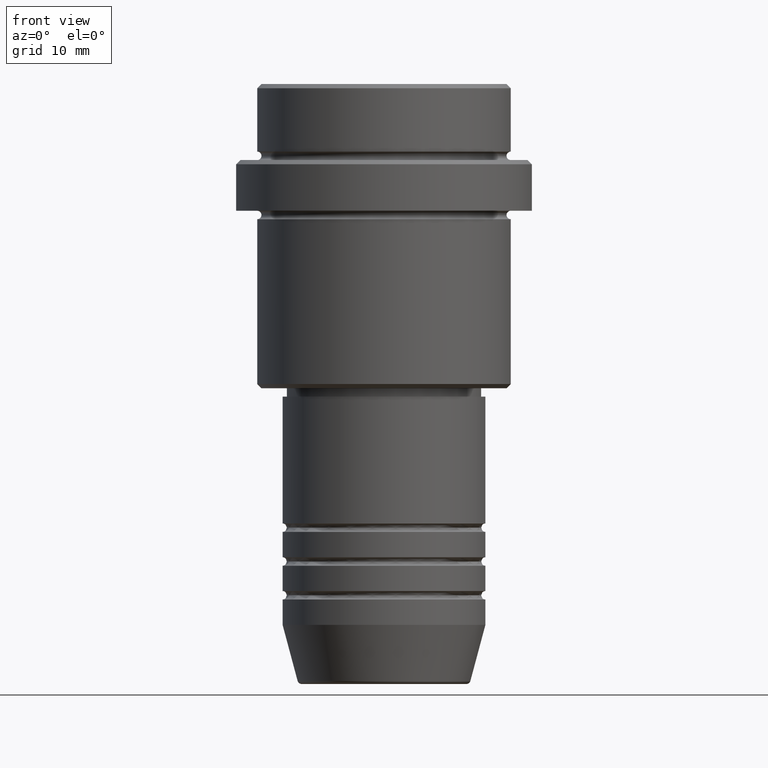
[diagram: clean part render]
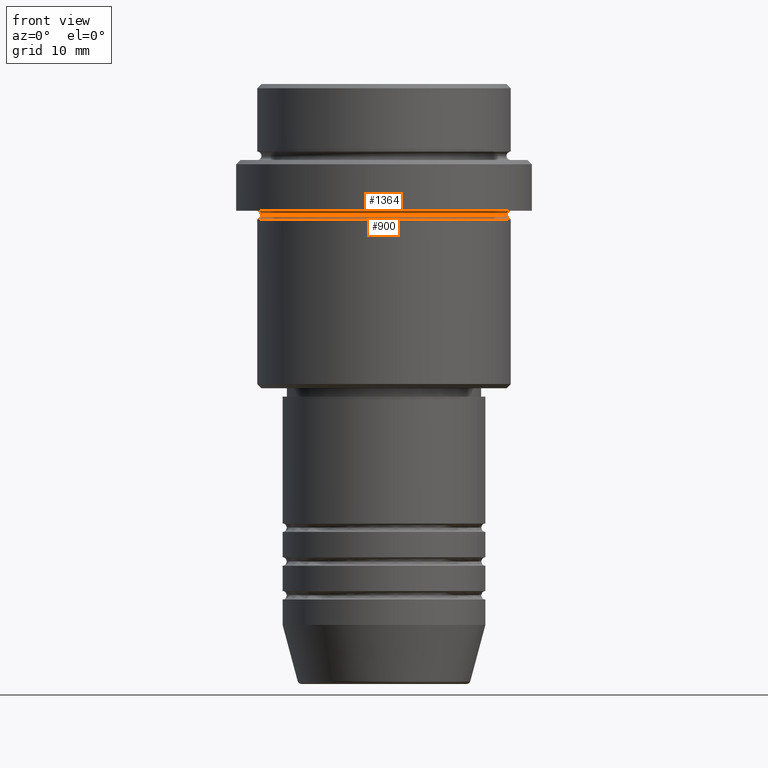
[diagram: same view with one multi-face feature highlighted, each face labeled with its STEP entity id]
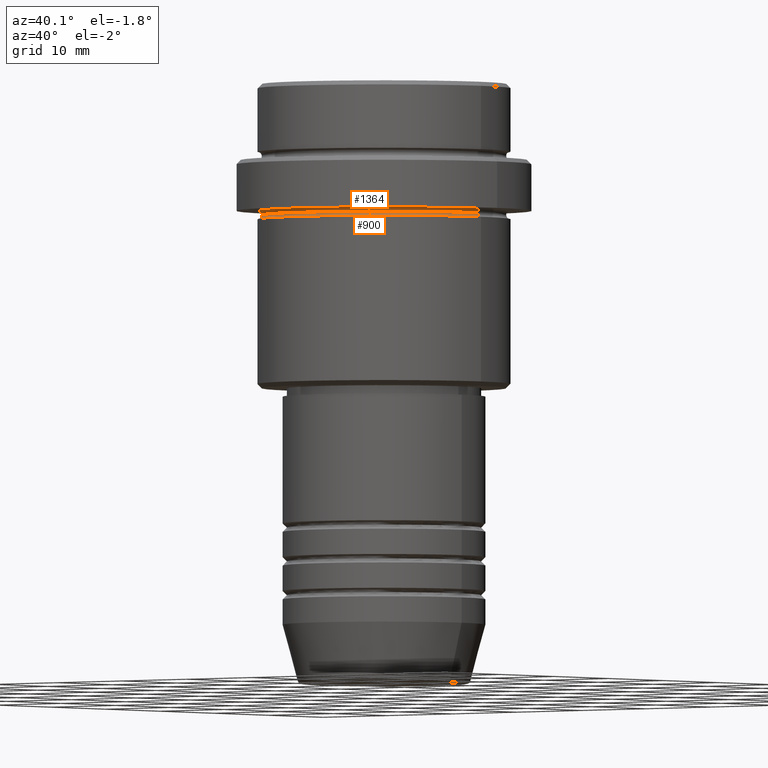
[diagram: same view with one multi-face feature highlighted, each face labeled with its STEP entity id]
A machine part, front view. The highlighted faces form ONE feature: a constant-radius fillet chain: 2 tangent blend faces with common blend radius 0.5 mm. The faces share edges in the B-rep.
A second angle (auxiliary view) of the same feature is appended — it is thin or edge-on in the first view.
Their STEP definitions:
[1] entity #900 (Torus):
#47 = CARTESIAN_POINT ( 'NONE',  ( 15.00000000000000178, 0.000000000000000000, -16.00000000000000000 ) ) ;
#158 = CARTESIAN_POINT ( 'NONE',  ( 0.000000000000000000, 0.000000000000000000, -15.50000000000000000 ) ) ;
#195 = ORIENTED_EDGE ( 'NONE', *, *, #915, .T. ) ;
#234 = AXIS2_PLACEMENT_3D ( 'NONE', #397, #531, #1253 ) ;
#242 = DIRECTION ( 'NONE',  ( -1.000000000000000000, 0.000000000000000000, 0.000000000000000000 ) ) ;
#280 = CIRCLE ( 'NONE', #793, 15.00000000000000178 ) ;
#293 = CARTESIAN_POINT ( 'NONE',  ( -15.00000000000000355, 1.836970198721029983E-15, -16.00000000000000000 ) ) ;
#330 = VERTEX_POINT ( 'NONE', #911 ) ;
#344 = EDGE_CURVE ( 'NONE', #869, #330, #1302, .T. ) ;
#384 = CARTESIAN_POINT ( 'NONE',  ( 14.49999999999999467, 1.806354028742345013E-15, -15.50000000000000000 ) ) ;
#397 = CARTESIAN_POINT ( 'NONE',  ( 14.99999999999999467, 1.836970198721029194E-15, -15.50000000000000000 ) ) ;
#427 = AXIS2_PLACEMENT_3D ( 'NONE', #1212, #781, #242 ) ;
#442 = CARTESIAN_POINT ( 'NONE',  ( -14.99999999999999467, 0.000000000000000000, -15.50000000000000000 ) ) ;
#508 = FACE_OUTER_BOUND ( 'NONE', #1297, .T. ) ;
#531 = DIRECTION ( 'NONE',  ( -1.224646799147353207E-16, 1.000000000000000000, 0.000000000000000000 ) ) ;
#638 = AXIS2_PLACEMENT_3D ( 'NONE', #442, #1201, #882 ) ;
#781 = DIRECTION ( 'NONE',  ( 0.000000000000000000, 0.000000000000000000, -1.000000000000000000 ) ) ;
#793 = AXIS2_PLACEMENT_3D ( 'NONE', #928, #1142, #1361 ) ;
#826 = DIRECTION ( 'NONE',  ( -1.000000000000000000, 0.000000000000000000, 0.000000000000000000 ) ) ;
#869 = VERTEX_POINT ( 'NONE', #384 ) ;
#882 = DIRECTION ( 'NONE',  ( 0.000000000000000000, 0.000000000000000000, -1.000000000000000000 ) ) ;
#899 = TOROIDAL_SURFACE ( 'NONE', #1005, 14.99999999999999467, 0.5000000000000000000 ) ;
#900 = ADVANCED_FACE ( 'NONE', ( #508 ), #899, .F. ) ;
#903 = VERTEX_POINT ( 'NONE', #293 ) ;
#911 = CARTESIAN_POINT ( 'NONE',  ( -14.49999999999999467, 0.000000000000000000, -15.50000000000000000 ) ) ;
#915 = EDGE_CURVE ( 'NONE', #903, #1294, #280, .T. ) ;
#928 = CARTESIAN_POINT ( 'NONE',  ( 0.000000000000000000, 0.000000000000000000, -16.00000000000000000 ) ) ;
#1005 = AXIS2_PLACEMENT_3D ( 'NONE', #158, #1272, #826 ) ;
#1063 = EDGE_CURVE ( 'NONE', #903, #330, #1092, .T. ) ;
#1092 = CIRCLE ( 'NONE', #638, 0.5000000000000004441 ) ;
#1142 = DIRECTION ( 'NONE',  ( -0.000000000000000000, -0.000000000000000000, 1.000000000000000000 ) ) ;
#1154 = ORIENTED_EDGE ( 'NONE', *, *, #344, .T. ) ;
#1194 = CIRCLE ( 'NONE', #234, 0.5000000000000004441 ) ;
#1201 = DIRECTION ( 'NONE',  ( -0.000000000000000000, -1.000000000000000000, -0.000000000000000000 ) ) ;
#1212 = CARTESIAN_POINT ( 'NONE',  ( 0.000000000000000000, 0.000000000000000000, -15.50000000000000000 ) ) ;
#1252 = ORIENTED_EDGE ( 'NONE', *, *, #1063, .F. ) ;
#1253 = DIRECTION ( 'NONE',  ( -1.000000000000000000, -1.224646799147349509E-16, 0.000000000000000000 ) ) ;
#1272 = DIRECTION ( 'NONE',  ( 0.000000000000000000, 0.000000000000000000, -1.000000000000000000 ) ) ;
#1294 = VERTEX_POINT ( 'NONE', #47 ) ;
#1297 = EDGE_LOOP ( 'NONE', ( #195, #1402, #1154, #1252 ) ) ;
#1302 = CIRCLE ( 'NONE', #427, 14.49999999999999467 ) ;
#1361 = DIRECTION ( 'NONE',  ( 1.000000000000000000, 0.000000000000000000, 0.000000000000000000 ) ) ;
#1378 = EDGE_CURVE ( 'NONE', #1294, #869, #1194, .T. ) ;
#1402 = ORIENTED_EDGE ( 'NONE', *, *, #1378, .T. ) ;
[2] entity #1364 (Torus):
#96 = AXIS2_PLACEMENT_3D ( 'NONE', #927, #382, #1359 ) ;
#117 = CIRCLE ( 'NONE', #252, 0.5000000000000004441 ) ;
#160 = CIRCLE ( 'NONE', #373, 0.5000000000000004441 ) ;
#161 = DIRECTION ( 'NONE',  ( -1.224646799147353207E-16, 1.000000000000000000, 0.000000000000000000 ) ) ;
#168 = DIRECTION ( 'NONE',  ( 0.000000000000000000, 0.000000000000000000, -1.000000000000000000 ) ) ;
#209 = ORIENTED_EDGE ( 'NONE', *, *, #481, .F. ) ;
#223 = CARTESIAN_POINT ( 'NONE',  ( 14.99999999999999467, 1.836970198721029194E-15, -15.50000000000000000 ) ) ;
#242 = DIRECTION ( 'NONE',  ( -1.000000000000000000, 0.000000000000000000, 0.000000000000000000 ) ) ;
#252 = AXIS2_PLACEMENT_3D ( 'NONE', #722, #1246, #168 ) ;
#330 = VERTEX_POINT ( 'NONE', #911 ) ;
#344 = EDGE_CURVE ( 'NONE', #869, #330, #1302, .T. ) ;
#373 = AXIS2_PLACEMENT_3D ( 'NONE', #223, #161, #734 ) ;
#382 = DIRECTION ( 'NONE',  ( 0.000000000000000000, 0.000000000000000000, -1.000000000000000000 ) ) ;
#384 = CARTESIAN_POINT ( 'NONE',  ( 14.49999999999999467, 1.806354028742345013E-15, -15.50000000000000000 ) ) ;
#427 = AXIS2_PLACEMENT_3D ( 'NONE', #1212, #781, #242 ) ;
#430 = VERTEX_POINT ( 'NONE', #636 ) ;
#481 = EDGE_CURVE ( 'NONE', #330, #430, #117, .T. ) ;
#490 = VERTEX_POINT ( 'NONE', #600 ) ;
#512 = ORIENTED_EDGE ( 'NONE', *, *, #543, .T. ) ;
#543 = EDGE_CURVE ( 'NONE', #869, #490, #160, .T. ) ;
#598 = CIRCLE ( 'NONE', #1006, 14.99999999999999467 ) ;
#600 = CARTESIAN_POINT ( 'NONE',  ( 14.99999999999999467, 1.836970198721029194E-15, -15.00000000000000000 ) ) ;
#636 = CARTESIAN_POINT ( 'NONE',  ( -14.99999999999999467, 0.000000000000000000, -15.00000000000000000 ) ) ;
#722 = CARTESIAN_POINT ( 'NONE',  ( -14.99999999999999467, 0.000000000000000000, -15.50000000000000000 ) ) ;
#730 = FACE_OUTER_BOUND ( 'NONE', #1185, .T. ) ;
#734 = DIRECTION ( 'NONE',  ( -1.000000000000000000, -1.224646799147349509E-16, 0.000000000000000000 ) ) ;
#781 = DIRECTION ( 'NONE',  ( 0.000000000000000000, 0.000000000000000000, -1.000000000000000000 ) ) ;
#804 = DIRECTION ( 'NONE',  ( -1.000000000000000000, 0.000000000000000000, 0.000000000000000000 ) ) ;
#869 = VERTEX_POINT ( 'NONE', #384 ) ;
#911 = CARTESIAN_POINT ( 'NONE',  ( -14.49999999999999467, 0.000000000000000000, -15.50000000000000000 ) ) ;
#927 = CARTESIAN_POINT ( 'NONE',  ( 0.000000000000000000, 0.000000000000000000, -15.50000000000000000 ) ) ;
#948 = ORIENTED_EDGE ( 'NONE', *, *, #344, .F. ) ;
#1006 = AXIS2_PLACEMENT_3D ( 'NONE', #1008, #1339, #804 ) ;
#1008 = CARTESIAN_POINT ( 'NONE',  ( 0.000000000000000000, 0.000000000000000000, -15.00000000000000000 ) ) ;
#1051 = TOROIDAL_SURFACE ( 'NONE', #96, 14.99999999999999467, 0.5000000000000000000 ) ;
#1185 = EDGE_LOOP ( 'NONE', ( #948, #512, #1411, #209 ) ) ;
#1212 = CARTESIAN_POINT ( 'NONE',  ( 0.000000000000000000, 0.000000000000000000, -15.50000000000000000 ) ) ;
#1246 = DIRECTION ( 'NONE',  ( -0.000000000000000000, -1.000000000000000000, -0.000000000000000000 ) ) ;
#1277 = EDGE_CURVE ( 'NONE', #430, #490, #598, .T. ) ;
#1302 = CIRCLE ( 'NONE', #427, 14.49999999999999467 ) ;
#1339 = DIRECTION ( 'NONE',  ( -0.000000000000000000, -0.000000000000000000, 1.000000000000000000 ) ) ;
#1359 = DIRECTION ( 'NONE',  ( -1.000000000000000000, 0.000000000000000000, 0.000000000000000000 ) ) ;
#1364 = ADVANCED_FACE ( 'NONE', ( #730 ), #1051, .F. ) ;
#1411 = ORIENTED_EDGE ( 'NONE', *, *, #1277, .F. ) ;